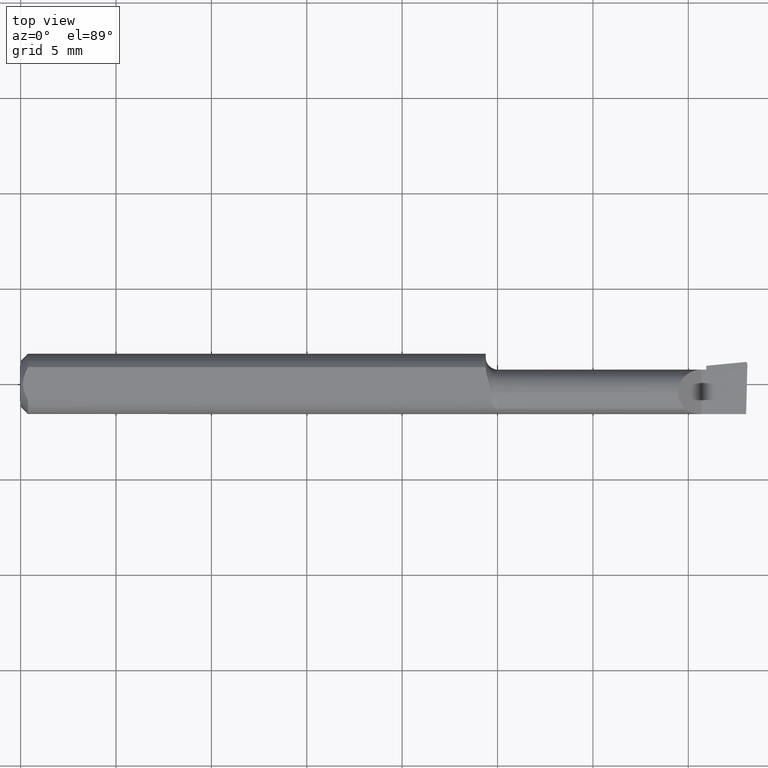
[diagram: clean part render]
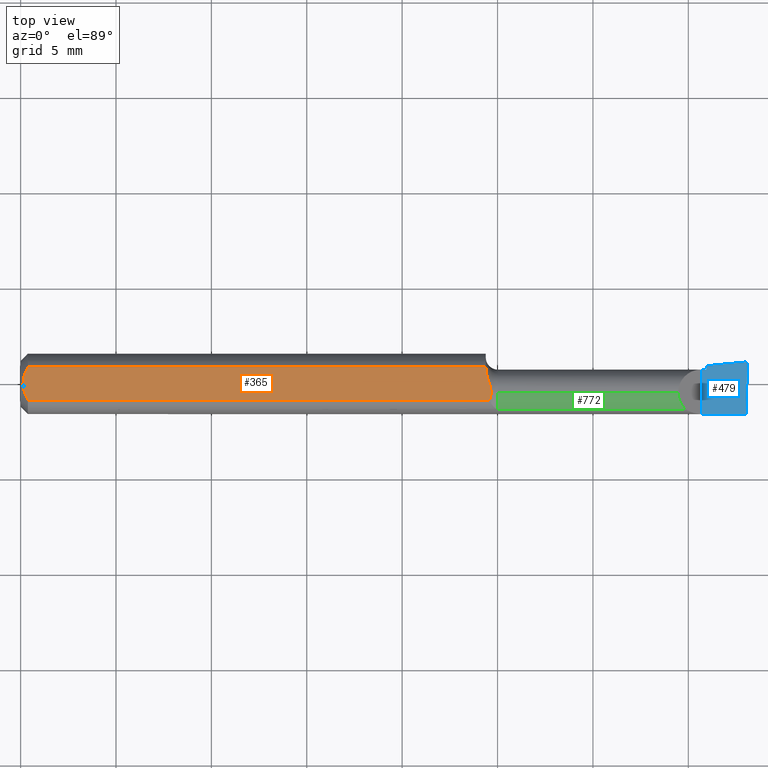
[diagram: same view with three faces highlighted in distinct colors, each labeled with its STEP entity id]
A machine part, top view with three faces highlighted in distinct colors.
Their STEP definitions:

[orange] entity #365 — the highlighted planar face has unit normal (0, -0, -1).
#2 = VECTOR ( 'NONE', #396, 39.37007874015748143 ) ;
#55 = CARTESIAN_POINT ( 'NONE',  ( 0.9709817975474823726, -0.01413225355780887635, 0.05235000000000000070 ) ) ;
#58 = CARTESIAN_POINT ( 'NONE',  ( 0.9696390223050100898, -0.02881514531779550206, 0.05234999999999998682 ) ) ;
#66 = LINE ( 'NONE', #766, #538 ) ;
#86 = CARTESIAN_POINT ( 'NONE',  ( 0.0000000000000000000, -0.03386738844375222768, 0.05234999999999997988 ) ) ;
#122 = CARTESIAN_POINT ( 'NONE',  ( 0.9684726880402972915, -0.003926822060867410022, 0.05235000000000000070 ) ) ;
#125 = CARTESIAN_POINT ( 'NONE',  ( 0.9709817975471366491, -0.01840000000000274055, 0.05235000000000000070 ) ) ;
#134 = EDGE_CURVE ( 'NONE', #735, #151, #66, .T. ) ;
#137 = AXIS2_PLACEMENT_3D ( 'NONE', #481, #657, #660 ) ;
#146 = CARTESIAN_POINT ( 'NONE',  ( 0.01216137397042176341, -0.02864146636719542074, 0.05235000000000000070 ) ) ;
#151 = VERTEX_POINT ( 'NONE', #416 ) ;
#166 = LINE ( 'NONE', #505, #2 ) ;
#175 = CARTESIAN_POINT ( 'NONE',  ( 0.004999999999989946514, 7.898418262501303575E-16, 0.05235000000000000070 ) ) ;
#177 = VERTEX_POINT ( 'NONE', #514 ) ;
#180 = CARTESIAN_POINT ( 'NONE',  ( 0.9664444859557655976, 0.002321921504987204624, 0.05235000000000000070 ) ) ;
#204 = CARTESIAN_POINT ( 'NONE',  ( 0.9709817975471366491, -0.01840000000000274055, 0.05235000000000000070 ) ) ;
#208 = DIRECTION ( 'NONE',  ( -1.000000000000000000, -0.0000000000000000000, -0.0000000000000000000 ) ) ;
#209 = B_SPLINE_CURVE_WITH_KNOTS ( 'NONE', 3,
 ( #617, #730, #675, #249, #180, #548, #122, #489, #55, #434 ),
 .UNSPECIFIED., .F., .F.,
 ( 4, 2, 2, 2, 4 ),
 ( 0.008710904206567280858, 0.009350419755586234644, 0.009510298642840973524, 0.009670177530095712404, 0.009989935304605188429 ),
 .UNSPECIFIED. ) ;
#214 = CARTESIAN_POINT ( 'NONE',  ( 0.01500000000000000465, 0.03386738844375223462, 0.05234999999999997988 ) ) ;
#224 = CARTESIAN_POINT ( 'NONE',  ( 0.009678036133109314473, -0.02325481837211496733, 0.05235000000000000070 ) ) ;
#225 = CARTESIAN_POINT ( 'NONE',  ( 0.006057557792978150897, -0.01187252718384441963, 0.05234999999999998682 ) ) ;
#227 = CARTESIAN_POINT ( 'NONE',  ( 0.004999999999998894218, -0.005957634400466962389, 0.05235000000000000070 ) ) ;
#232 = CARTESIAN_POINT ( 'NONE',  ( 0.01500000000000185039, -0.03386738844380016850, 0.05235000000000000070 ) ) ;
#242 = EDGE_LOOP ( 'NONE', ( #358, #646, #654, #560, #549, #386, #361 ) ) ;
#249 = CARTESIAN_POINT ( 'NONE',  ( 0.9657332775895889343, 0.004426912553965690889, 0.05234999999999998682 ) ) ;
#270 = EDGE_CURVE ( 'NONE', #781, #177, #463, .T. ) ;
#279 = VERTEX_POINT ( 'NONE', #204 ) ;
#312 = CARTESIAN_POINT ( 'NONE',  ( 0.01500000000000185039, -0.03386738844380016850, 0.05235000000000000070 ) ) ;
#320 = VECTOR ( 'NONE', #208, 39.37007874015748143 ) ;
#321 = FACE_OUTER_BOUND ( 'NONE', #242, .T. ) ;
#355 = PLANE ( 'NONE',  #137 ) ;
#358 = ORIENTED_EDGE ( 'NONE', *, *, #446, .F. ) ;
#361 = ORIENTED_EDGE ( 'NONE', *, *, #439, .F. ) ;
#365 = ADVANCED_FACE ( 'NONE', ( #321 ), #355, .F. ) ;
#368 = LINE ( 'NONE', #86, #320 ) ;
#386 = ORIENTED_EDGE ( 'NONE', *, *, #609, .F. ) ;
#389 = CARTESIAN_POINT ( 'NONE',  ( 0.9600000000000001865, 0.03386738844375224156, 0.05235000000000000070 ) ) ;
#396 = DIRECTION ( 'NONE',  ( 1.000000000000000000, 0.0000000000000000000, 0.0000000000000000000 ) ) ;
#416 = CARTESIAN_POINT ( 'NONE',  ( 0.9600000000000001865, 0.03254879782683781780, 0.05235000000000000070 ) ) ;
#434 = CARTESIAN_POINT ( 'NONE',  ( 0.9709817975471366491, -0.01840000000000274055, 0.05235000000000000070 ) ) ;
#438 = CARTESIAN_POINT ( 'NONE',  ( 0.9689259844007445110, -0.03134776909451144483, 0.05235000000000000070 ) ) ;
#439 = EDGE_CURVE ( 'NONE', #279, #566, #523, .T. ) ;
#446 = EDGE_CURVE ( 'NONE', #151, #279, #209, .T. ) ;
#463 = B_SPLINE_CURVE_WITH_KNOTS ( 'NONE', 3,
 ( #232, #146, #224, #225, #227, #175 ),
 .UNSPECIFIED., .F., .F.,
 ( 4, 2, 4 ),
 ( 0.002133667072902290223, 0.002585433046183635737, 0.003037199019464981251 ),
 .UNSPECIFIED. ) ;
#481 = CARTESIAN_POINT ( 'NONE',  ( 1.500000000000000222, 0.1123499999999999915, 0.05234999999999998682 ) ) ;
#489 = CARTESIAN_POINT ( 'NONE',  ( 0.9701689947020403215, -0.01001121285792180154, 0.05235000000000001458 ) ) ;
#491 = CARTESIAN_POINT ( 'NONE',  ( 0.9706711879428688849, -0.02367561104898163044, 0.05235000000000000070 ) ) ;
#505 = CARTESIAN_POINT ( 'NONE',  ( 0.0000000000000000000, 0.03386738844375223462, 0.05234999999999997988 ) ) ;
#514 = CARTESIAN_POINT ( 'NONE',  ( 0.004999999999989946514, 7.898418262501303575E-16, 0.05235000000000000070 ) ) ;
#516 = B_SPLINE_CURVE_WITH_KNOTS ( 'NONE', 3,
 ( #582, #571, #686, #655, #695, #690 ),
 .UNSPECIFIED., .F., .F.,
 ( 4, 2, 4 ),
 ( 0.003037199019464981251, 0.003488061124369675782, 0.003938923229274369879 ),
 .UNSPECIFIED. ) ;
#523 = B_SPLINE_CURVE_WITH_KNOTS ( 'NONE', 3,
 ( #125, #550, #491, #58, #438, #782 ),
 .UNSPECIFIED., .F., .F.,
 ( 4, 2, 4 ),
 ( 0.0004198066361325438834, 0.0006196367099741922988, 0.0008194667838158406058 ),
 .UNSPECIFIED. ) ;
#538 = VECTOR ( 'NONE', #726, 39.37007874015748143 ) ;
#548 = CARTESIAN_POINT ( 'NONE',  ( 0.9678289663216181893, -0.001899322570691524366, 0.05235000000000000070 ) ) ;
#549 = ORIENTED_EDGE ( 'NONE', *, *, #270, .F. ) ;
#550 = CARTESIAN_POINT ( 'NONE',  ( 0.9709817975474690499, -0.02106709414031691582, 0.05235000000000000070 ) ) ;
#560 = ORIENTED_EDGE ( 'NONE', *, *, #784, .F. ) ;
#566 = VERTEX_POINT ( 'NONE', #583 ) ;
#571 = CARTESIAN_POINT ( 'NONE',  ( 0.004999999999999278459, 0.005945714695019506738, 0.05235000000000000070 ) ) ;
#573 = VERTEX_POINT ( 'NONE', #214 ) ;
#582 = CARTESIAN_POINT ( 'NONE',  ( 0.004999999999989946514, 7.898418262501303575E-16, 0.05235000000000000070 ) ) ;
#583 = CARTESIAN_POINT ( 'NONE',  ( 0.9681439896686973023, -0.03386738844377056717, 0.05235000000000000070 ) ) ;
#609 = EDGE_CURVE ( 'NONE', #566, #781, #368, .T. ) ;
#617 = CARTESIAN_POINT ( 'NONE',  ( 0.9600000000000001865, 0.03254879782683781780, 0.05235000000000000070 ) ) ;
#646 = ORIENTED_EDGE ( 'NONE', *, *, #134, .F. ) ;
#654 = ORIENTED_EDGE ( 'NONE', *, *, #758, .F. ) ;
#655 = CARTESIAN_POINT ( 'NONE',  ( 0.009669996313769786342, 0.02323004575534281385, 0.05234999999999998682 ) ) ;
#657 = DIRECTION ( 'NONE',  ( 0.0000000000000000000, -7.598598113218357399E-17, -1.000000000000000000 ) ) ;
#660 = DIRECTION ( 'NONE',  ( 0.0000000000000000000, 1.000000000000000000, -7.598598113218357399E-17 ) ) ;
#675 = CARTESIAN_POINT ( 'NONE',  ( 0.9623037607715416719, 0.01498942864105881276, 0.05235000000000000764 ) ) ;
#686 = CARTESIAN_POINT ( 'NONE',  ( 0.006064493299689855191, 0.01189382783781397362, 0.05235000000000000070 ) ) ;
#690 = CARTESIAN_POINT ( 'NONE',  ( 0.01500000000000000465, 0.03386738844375223462, 0.05234999999999997988 ) ) ;
#695 = CARTESIAN_POINT ( 'NONE',  ( 0.01218518006020415101, 0.02868529347538066598, 0.05235000000000000070 ) ) ;
#726 = DIRECTION ( 'NONE',  ( 0.0000000000000000000, -1.000000000000000000, 7.598598113218357399E-17 ) ) ;
#730 = CARTESIAN_POINT ( 'NONE',  ( 0.9599999999999991873, 0.02370330699131453778, 0.05234999999999997988 ) ) ;
#735 = VERTEX_POINT ( 'NONE', #389 ) ;
#758 = EDGE_CURVE ( 'NONE', #573, #735, #166, .T. ) ;
#766 = CARTESIAN_POINT ( 'NONE',  ( 0.9600000000000001865, 0.1123499999999999915, 0.05234999999999998682 ) ) ;
#781 = VERTEX_POINT ( 'NONE', #312 ) ;
#782 = CARTESIAN_POINT ( 'NONE',  ( 0.9681439896686973023, -0.03386738844377056717, 0.05235000000000000070 ) ) ;
#784 = EDGE_CURVE ( 'NONE', #177, #573, #516, .T. ) ;

[blue] entity #479 — the highlighted planar face has unit normal (-0, 0, -1).
#3 = CARTESIAN_POINT ( 'NONE',  ( 1.405000000000000249, -0.2500000000000000555, 1.163414459189982046E-17 ) ) ;
#8 = EDGE_LOOP ( 'NONE', ( #53, #427, #765, #190, #435, #141, #715, #268 ) ) ;
#25 = CARTESIAN_POINT ( 'NONE',  ( 2.249639673992775738E-32, 0.02964999999999996458, 1.836970198721025250E-16 ) ) ;
#33 = CARTESIAN_POINT ( 'NONE',  ( 1.496007920276503533, 0.04524764111161377889, -3.414809992080329023E-17 ) ) ;
#37 = EDGE_CURVE ( 'NONE', #311, #744, #212, .T. ) ;
#53 = ORIENTED_EDGE ( 'NONE', *, *, #598, .T. ) ;
#81 = CARTESIAN_POINT ( 'NONE',  ( 1.405000000000000249, 0.02964999999999991601, 1.163414459189982046E-17 ) ) ;
#87 = EDGE_CURVE ( 'NONE', #525, #751, #246, .T. ) ;
#104 = VECTOR ( 'NONE', #575, 39.37007874015748143 ) ;
#116 = CARTESIAN_POINT ( 'NONE',  ( 1.405000000000000249, -0.06235000000000005121, 1.163414459189982046E-17 ) ) ;
#133 = CARTESIAN_POINT ( 'NONE',  ( 1.499880855614020625, 0.04110005946548990485, 2.844601328296318996E-20 ) ) ;
#141 = ORIENTED_EDGE ( 'NONE', *, *, #641, .F. ) ;
#155 = CARTESIAN_POINT ( 'NONE',  ( 2.249639673992775738E-32, -0.06234999999999999570, 1.836970198721025250E-16 ) ) ;
#157 = CARTESIAN_POINT ( 'NONE',  ( 1.496007920276503533, 0.04524764111161377889, -3.414809992080329023E-17 ) ) ;
#159 = VERTEX_POINT ( 'NONE', #33 ) ;
#162 = CARTESIAN_POINT ( 'NONE',  ( 1.495883579913034112, 0.04524764111161379276, -1.707839814407301456E-17 ) ) ;
#171 = CARTESIAN_POINT ( 'NONE',  ( 1.495759144559524190, 0.04524165206609318673, -1.706315920833534573E-17 ) ) ;
#179 = PLANE ( 'NONE',  #711 ) ;
#190 = ORIENTED_EDGE ( 'NONE', *, *, #37, .F. ) ;
#212 = LINE ( 'NONE', #248, #104 ) ;
#222 = DIRECTION ( 'NONE',  ( -1.000000000000000000, -0.0000000000000000000, -0.0000000000000000000 ) ) ;
#228 = VERTEX_POINT ( 'NONE', #770 ) ;
#240 = VERTEX_POINT ( 'NONE', #528 ) ;
#244 = CARTESIAN_POINT ( 'NONE',  ( 1.495634880358090335, 0.04522968678441208201, 5.345729797359908772E-19 ) ) ;
#246 = LINE ( 'NONE', #3, #283 ) ;
#248 = CARTESIAN_POINT ( 'NONE',  ( 0.8348153170171558335, -0.01839999999999999969, 8.146162928567849885E-17 ) ) ;
#268 = ORIENTED_EDGE ( 'NONE', *, *, #278, .F. ) ;
#278 = EDGE_CURVE ( 'NONE', #228, #525, #293, .T. ) ;
#281 = CARTESIAN_POINT ( 'NONE',  ( 1.415000000000000036, -0.2500000000000000555, 1.040949779275248537E-17 ) ) ;
#283 = VECTOR ( 'NONE', #556, 39.37007874015748143 ) ;
#286 = VECTOR ( 'NONE', #700, 39.37007874015748854 ) ;
#291 = EDGE_CURVE ( 'NONE', #159, #744, #708, .T. ) ;
#293 = LINE ( 'NONE', #155, #356 ) ;
#301 = DIRECTION ( 'NONE',  ( -1.224646799147350495E-16, 0.0000000000000000000, -1.000000000000000000 ) ) ;
#310 = DIRECTION ( 'NONE',  ( 0.0000000000000000000, 1.000000000000000000, 0.0000000000000000000 ) ) ;
#311 = VERTEX_POINT ( 'NONE', #461 ) ;
#356 = VECTOR ( 'NONE', #222, 39.37007874015748143 ) ;
#371 = CARTESIAN_POINT ( 'NONE',  ( 1.500000000000000222, -0.2500000000000000555, 0.0000000000000000000 ) ) ;
#378 = VECTOR ( 'NONE', #310, 39.37007874015748143 ) ;
#387 = CARTESIAN_POINT ( 'NONE',  ( 1.495634880358090335, 0.04522968678441208201, 5.345729797359908772E-19 ) ) ;
#401 = CARTESIAN_POINT ( 'NONE',  ( 1.492263437268387616, -0.2497974109750948912, 9.474556785672138714E-19 ) ) ;
#411 = CARTESIAN_POINT ( 'NONE',  ( 1.498346190944509715, 0.04524764111161379970, -1.737998101579716457E-17 ) ) ;
#413 = CARTESIAN_POINT ( 'NONE',  ( 1.496007920276503533, 0.04524764111161377889, -3.414809992080329023E-17 ) ) ;
#418 = VECTOR ( 'NONE', #460, 39.37007874015748143 ) ;
#427 = ORIENTED_EDGE ( 'NONE', *, *, #716, .T. ) ;
#435 = ORIENTED_EDGE ( 'NONE', *, *, #680, .F. ) ;
#460 = DIRECTION ( 'NONE',  ( 1.000000000000000000, 0.0000000000000000000, 0.0000000000000000000 ) ) ;
#461 = CARTESIAN_POINT ( 'NONE',  ( 1.415000000000000036, 0.03746543090321034775, 1.899488058094682973E-16 ) ) ;
#479 = ADVANCED_FACE ( 'NONE', ( #719 ), #179, .F. ) ;
#525 = VERTEX_POINT ( 'NONE', #116 ) ;
#528 = CARTESIAN_POINT ( 'NONE',  ( 1.415000000000000036, 0.02964999999999999927, 1.836970198721026483E-16 ) ) ;
#556 = DIRECTION ( 'NONE',  ( -0.0000000000000000000, 1.000000000000000000, -0.0000000000000000000 ) ) ;
#575 = DIRECTION ( 'NONE',  ( 0.9953961983671787417, 0.09584575252022461966, -1.219008768213806398E-16 ) ) ;
#576 = LINE ( 'NONE', #25, #418 ) ;
#598 = EDGE_CURVE ( 'NONE', #228, #750, #762, .T. ) ;
#619 = CARTESIAN_POINT ( 'NONE',  ( 1.499880855614020625, 0.04110005946548990485, 2.844601328296318996E-20 ) ) ;
#641 = EDGE_CURVE ( 'NONE', #751, #240, #576, .T. ) ;
#673 = DIRECTION ( 'NONE',  ( -1.000000000000000000, 0.0000000000000000000, 1.224646799147350495E-16 ) ) ;
#680 = EDGE_CURVE ( 'NONE', #240, #311, #697, .T. ) ;
#682 = CARTESIAN_POINT ( 'NONE',  ( 1.499944638786159024, 0.04353584053852186525, -1.757573441908511997E-17 ) ) ;
#697 = LINE ( 'NONE', #281, #378 ) ;
#700 = DIRECTION ( 'NONE',  ( 0.02617694830787654220, 0.9996573249755572599, -3.158139334224213540E-18 ) ) ;
#708 =( BOUNDED_CURVE ( )  B_SPLINE_CURVE ( 3, ( #157, #162, #171, #244 ),
 .UNSPECIFIED., .F., .F. ) 
 B_SPLINE_CURVE_WITH_KNOTS ( ( 4, 4 ),
 ( 3.511516179717732999, 3.604018710826316418 ),
 .UNSPECIFIED. ) 
 CURVE ( )  GEOMETRIC_REPRESENTATION_ITEM ( )  RATIONAL_B_SPLINE_CURVE ( ( 1.000000000000000000, 0.9992870672494010842, 0.9992870672494010842, 1.000000000000000000 ) ) 
 REPRESENTATION_ITEM ( '' )  );
#711 = AXIS2_PLACEMENT_3D ( 'NONE', #371, #301, #673 ) ;
#715 = ORIENTED_EDGE ( 'NONE', *, *, #87, .F. ) ;
#716 = EDGE_CURVE ( 'NONE', #750, #159, #783, .T. ) ;
#719 = FACE_OUTER_BOUND ( 'NONE', #8, .T. ) ;
#744 = VERTEX_POINT ( 'NONE', #387 ) ;
#750 = VERTEX_POINT ( 'NONE', #133 ) ;
#751 = VERTEX_POINT ( 'NONE', #81 ) ;
#762 = LINE ( 'NONE', #401, #286 ) ;
#765 = ORIENTED_EDGE ( 'NONE', *, *, #291, .T. ) ;
#770 = CARTESIAN_POINT ( 'NONE',  ( 1.497171920470529161, -0.06235000000000005121, 3.552677088412748576E-19 ) ) ;
#783 =( BOUNDED_CURVE ( )  B_SPLINE_CURVE ( 3, ( #619, #682, #411, #413 ),
 .UNSPECIFIED., .F., .T. ) 
 B_SPLINE_CURVE_WITH_KNOTS ( ( 4, 4 ),
 ( 1.953092279228472616, 3.511516179717732999 ),
 .UNSPECIFIED. ) 
 CURVE ( )  GEOMETRIC_REPRESENTATION_ITEM ( )  RATIONAL_B_SPLINE_CURVE ( ( 1.000000000000000000, 0.8076450242550405889, 0.8076450242550405889, 1.000000000000000000 ) ) 
 REPRESENTATION_ITEM ( '' )  );

[green] entity #772 — the highlighted cylindrical surface (edge-blend (fillet) strip) has radius 1.2205 mm, axis along (-1, -0, -0).
#84 = CARTESIAN_POINT ( 'NONE',  ( 1.199999999999999956, -0.05210000000000007681, 0.03425072991922935295 ) ) ;
#85 = LINE ( 'NONE', #84, #714 ) ;
#92 = DIRECTION ( 'NONE',  ( 1.000000000000000000, 0.0000000000000000000, 0.0000000000000000000 ) ) ;
#96 = VERTEX_POINT ( 'NONE', #493 ) ;
#99 = AXIS2_PLACEMENT_3D ( 'NONE', #282, #273, #710 ) ;
#105 = VECTOR ( 'NONE', #537, 39.37007874015748143 ) ;
#113 = ORIENTED_EDGE ( 'NONE', *, *, #332, .T. ) ;
#115 = CARTESIAN_POINT ( 'NONE',  ( 1.361790413321597892, -0.04299473640227075705, 0.04320958667840187062 ) ) ;
#123 = VERTEX_POINT ( 'NONE', #749 ) ;
#128 = DIRECTION ( 'NONE',  ( 0.0000000000000000000, 0.0000000000000000000, 1.000000000000000000 ) ) ;
#150 = AXIS2_PLACEMENT_3D ( 'NONE', #503, #196, #128 ) ;
#174 = EDGE_CURVE ( 'NONE', #468, #472, #213, .T. ) ;
#178 = CIRCLE ( 'NONE', #99, 0.04804999999999994692 ) ;
#196 = DIRECTION ( 'NONE',  ( -1.000000000000000000, -0.0000000000000000000, -0.0000000000000000000 ) ) ;
#213 = LINE ( 'NONE', #531, #105 ) ;
#273 = DIRECTION ( 'NONE',  ( -1.000000000000000000, -0.0000000000000000000, -0.0000000000000000000 ) ) ;
#282 = CARTESIAN_POINT ( 'NONE',  ( 0.9850000000000000977, -0.01839999999999999969, 0.0000000000000000000 ) ) ;
#298 = CARTESIAN_POINT ( 'NONE',  ( 1.356949999999999878, -0.01839999999999999969, 0.04804999999999997468 ) ) ;
#332 = EDGE_CURVE ( 'NONE', #96, #468, #433, .T. ) ;
#340 = ORIENTED_EDGE ( 'NONE', *, *, #393, .F. ) ;
#372 = CARTESIAN_POINT ( 'NONE',  ( 1.356949999999999878, -0.01839999999999999969, 0.04804999999999997468 ) ) ;
#393 = EDGE_CURVE ( 'NONE', #123, #472, #178, .T. ) ;
#398 = CARTESIAN_POINT ( 'NONE',  ( 1.356949999999999656, -0.03117368152160952810, 0.04804999999999997468 ) ) ;
#415 = CARTESIAN_POINT ( 'NONE',  ( 1.370749270080770632, -0.05210000000000013232, 0.03425072991922928356 ) ) ;
#433 =( BOUNDED_CURVE ( )  B_SPLINE_CURVE ( 3, ( #415, #115, #398, #298 ),
 .UNSPECIFIED., .F., .T. ) 
 B_SPLINE_CURVE_WITH_KNOTS ( ( 4, 4 ),
 ( 5.505891808168995816, 6.283185307179586232 ),
 .UNSPECIFIED. ) 
 CURVE ( )  GEOMETRIC_REPRESENTATION_ITEM ( )  RATIONAL_B_SPLINE_CURVE ( ( 1.000000000000000000, 0.9502818019828904728, 0.9502818019828904728, 1.000000000000000000 ) ) 
 REPRESENTATION_ITEM ( '' )  );
#437 = ORIENTED_EDGE ( 'NONE', *, *, #174, .T. ) ;
#443 = ORIENTED_EDGE ( 'NONE', *, *, #651, .T. ) ;
#467 = EDGE_LOOP ( 'NONE', ( #113, #437, #340, #443 ) ) ;
#468 = VERTEX_POINT ( 'NONE', #372 ) ;
#472 = VERTEX_POINT ( 'NONE', #779 ) ;
#493 = CARTESIAN_POINT ( 'NONE',  ( 1.370749270080770632, -0.05210000000000013232, 0.03425072991922928356 ) ) ;
#503 = CARTESIAN_POINT ( 'NONE',  ( 0.0000000000000000000, -0.01839999999999999969, 0.0000000000000000000 ) ) ;
#531 = CARTESIAN_POINT ( 'NONE',  ( 0.0000000000000000000, -0.01839999999999999969, 0.04804999999999997468 ) ) ;
#537 = DIRECTION ( 'NONE',  ( -1.000000000000000000, -0.0000000000000000000, -0.0000000000000000000 ) ) ;
#627 = CYLINDRICAL_SURFACE ( 'NONE', #150, 0.04804999999999997468 ) ;
#651 = EDGE_CURVE ( 'NONE', #123, #96, #85, .T. ) ;
#663 = FACE_OUTER_BOUND ( 'NONE', #467, .T. ) ;
#710 = DIRECTION ( 'NONE',  ( 0.0000000000000000000, 0.0000000000000000000, 1.000000000000000000 ) ) ;
#714 = VECTOR ( 'NONE', #92, 39.37007874015748143 ) ;
#749 = CARTESIAN_POINT ( 'NONE',  ( 0.9850000000000000977, -0.05210000000000009068, 0.03425072991922929050 ) ) ;
#772 = ADVANCED_FACE ( 'NONE', ( #663 ), #627, .T. ) ;
#779 = CARTESIAN_POINT ( 'NONE',  ( 0.9850000000000000977, -0.01839999999999999969, 0.04804999999999994692 ) ) ;